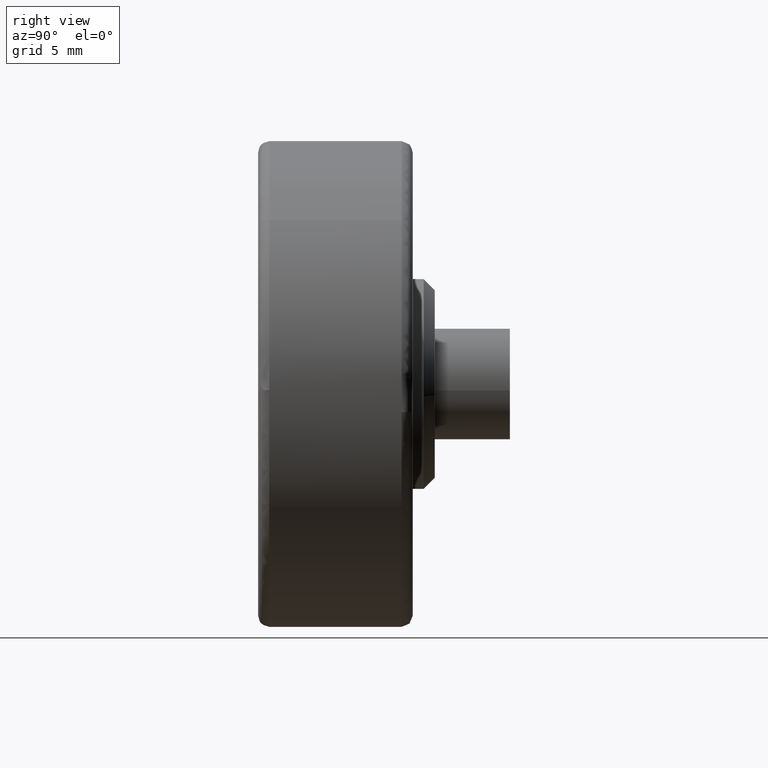
[diagram: clean part render]
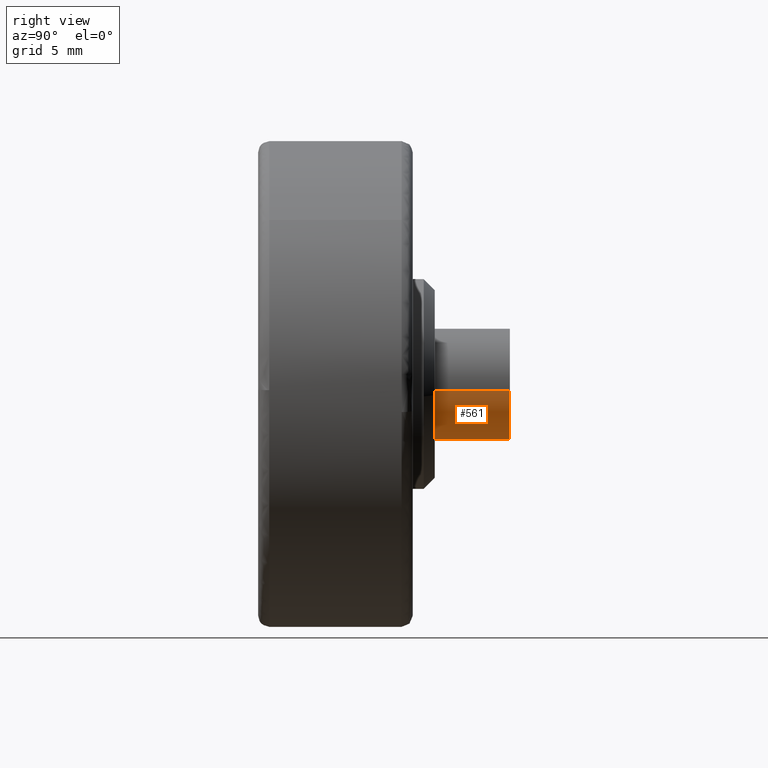
[diagram: same view with one face highlighted and labeled with its STEP entity id]
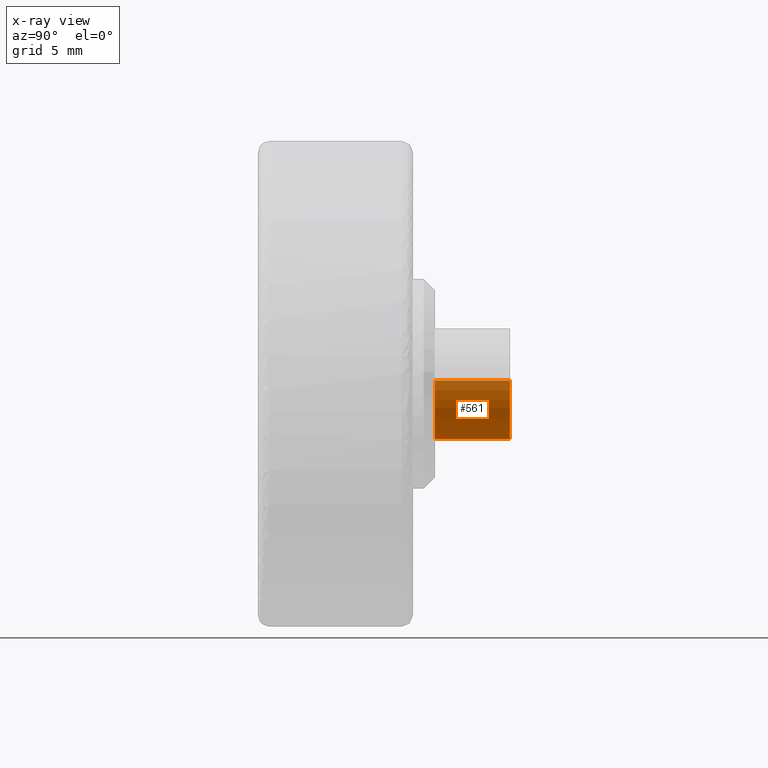
[diagram: x-ray of the same camera — body ghosted, the highlighted face saturated]
A machine part, right view. The second image highlights one B-rep face of the part: STEP entity #561.
The next image is the same camera in x-ray: the body ghosted, the highlighted face saturated — about 17% of this face is hidden behind the body in this view.
In plain terms, the highlighted face is a freeform B-spline surface patch.
Its self-contained STEP definition (entity closure, byte-faithful):
#398=CARTESIAN_POINT('',(2.482523815905430,8.0,-0.295085586673325));
#399=VERTEX_POINT('',#398);
#417=CARTESIAN_POINT('',(2.482523815905430,11.400000000000000,-0.295085586673325));
#418=VERTEX_POINT('',#417);
#419=CARTESIAN_POINT('',(2.482523815905430,11.400000000000000,-0.295085586673325));
#420=CARTESIAN_POINT('',(2.482523815905430,8.0,-0.295085586673325));
#421=QUASI_UNIFORM_CURVE('',1,(#419,#420),.UNSPECIFIED.,.F.,.U.);
#422=EDGE_CURVE('',#418,#399,#421,.T.);
#441=CARTESIAN_POINT('',(-2.495337161746823,11.400000000000000,0.152618639746073));
#442=VERTEX_POINT('',#441);
#456=CARTESIAN_POINT('',(-2.495337163820828,7.999999999999971,0.152618605835177));
#457=VERTEX_POINT('',#456);
#458=CARTESIAN_POINT('',(-2.495337161746823,11.400000000000000,0.152618639746073));
#459=CARTESIAN_POINT('',(-2.495337163820828,7.999999999999971,0.152618605835177));
#460=QUASI_UNIFORM_CURVE('',1,(#458,#459),.UNSPECIFIED.,.F.,.U.);
#461=EDGE_CURVE('',#442,#457,#460,.T.);
#479=CARTESIAN_POINT('',(-2.495336996054667,11.484999999999999,0.152621348837142));
#480=CARTESIAN_POINT('',(-2.647958344891809,11.485000000000005,-2.342715647217524));
#481=CARTESIAN_POINT('',(-0.152621348837143,11.484999999999999,-2.495336996054667));
#482=CARTESIAN_POINT('',(2.203858727098751,11.485000000000005,-2.639465491831319));
#483=CARTESIAN_POINT('',(2.482523815909166,11.484999999999999,-0.295085586641896));
#484=CARTESIAN_POINT('',(-2.495336996054667,7.912875000000000,0.152621348837142));
#485=CARTESIAN_POINT('',(-2.647958344891809,7.912875000000000,-2.342715647217524));
#486=CARTESIAN_POINT('',(-0.152621348837143,7.912875000000000,-2.495336996054667));
#487=CARTESIAN_POINT('',(2.203858727098751,7.912875000000000,-2.639465491831319));
#488=CARTESIAN_POINT('',(2.482523815909166,7.912875000000001,-0.295085586641896));
#496=(BOUNDED_SURFACE()B_SPLINE_SURFACE(2,1,((#479,#484),(#480,#485),(#481,#486),(#482,#487),(#483,#488)),.UNSPECIFIED.,.F.,.F.,.U.)B_SPLINE_SURFACE_WITH_KNOTS((3,2,3),(2,2),(0.0,4.142135623730949,8.118585822512660),(0.0,3.572125000000004),.UNSPECIFIED.)GEOMETRIC_REPRESENTATION_ITEM()RATIONAL_B_SPLINE_SURFACE(((1.0,1.0),(0.707106781186548,0.707106781186548),(1.0,1.0),(0.718822509939086,0.718822509939086),(0.977505800795127,0.977505800795127)))REPRESENTATION_ITEM('')SURFACE());
#497=CARTESIAN_POINT('',(0.0,8.0,-2.500000000000000));
#498=VERTEX_POINT('',#497);
#499=CARTESIAN_POINT('',(0.0,8.0,-2.500000000000000));
#500=CARTESIAN_POINT('',(2.220436314821801,8.0,-2.500000000000000));
#501=CARTESIAN_POINT('',(2.482523815905430,8.0,-0.295085586673325));
#509=(BOUNDED_CURVE()B_SPLINE_CURVE(2,(#499,#500,#501),.UNSPECIFIED.,.F.,.U.)B_SPLINE_CURVE_WITH_KNOTS((3,3),(0.0,0.229562473511365),.UNSPECIFIED.)CURVE()GEOMETRIC_REPRESENTATION_ITEM()RATIONAL_B_SPLINE_CURVE((1.0,0.731050832857914,0.956026754179498))REPRESENTATION_ITEM(''));
#510=EDGE_CURVE('',#498,#399,#509,.T.);
#511=ORIENTED_EDGE('',*,*,#510,.F.);
#512=CARTESIAN_POINT('',(-2.495337163820827,7.999999999999971,0.152618605835177));
#513=CARTESIAN_POINT('',(-2.500000000000000,8.0,0.076380532900050));
#514=CARTESIAN_POINT('',(-2.500000000000000,8.0,-1.962843E-016));
#515=CARTESIAN_POINT('',(-2.500000000000000,8.0,-2.500000000000000));
#516=CARTESIAN_POINT('',(0.0,8.0,-2.500000000000000));
#524=(BOUNDED_CURVE()B_SPLINE_CURVE(2,(#512,#513,#514,#515,#516),.UNSPECIFIED.,.F.,.U.)B_SPLINE_CURVE_WITH_KNOTS((3,2,3),(0.739333151914246,0.750000000000000,1.0),.UNSPECIFIED.)CURVE()GEOMETRIC_REPRESENTATION_ITEM()RATIONAL_B_SPLINE_CURVE((0.976072448177334,0.987503010118277,1.0,0.707106781186548,1.0))REPRESENTATION_ITEM(''));
#525=EDGE_CURVE('',#457,#498,#524,.T.);
#526=ORIENTED_EDGE('',*,*,#525,.F.);
#527=ORIENTED_EDGE('',*,*,#461,.F.);
#528=CARTESIAN_POINT('',(0.0,11.400000000000000,-2.500000000000000));
#529=VERTEX_POINT('',#528);
#530=CARTESIAN_POINT('',(-2.495337161746823,11.400000000000000,0.152618639746073));
#531=CARTESIAN_POINT('',(-2.500000000000000,11.400000000000002,0.076380549903037));
#532=CARTESIAN_POINT('',(-2.500000000000000,11.400000000000000,-1.962843E-016));
#533=CARTESIAN_POINT('',(-2.500000000000000,11.399999999999999,-2.500000000000000));
#534=CARTESIAN_POINT('',(0.0,11.400000000000000,-2.500000000000000));
#542=(BOUNDED_CURVE()B_SPLINE_CURVE(2,(#530,#531,#532,#533,#534),.UNSPECIFIED.,.F.,.U.)B_SPLINE_CURVE_WITH_KNOTS((3,2,3),(0.739333149569385,0.750000000000000,1.0),.UNSPECIFIED.)CURVE()GEOMETRIC_REPRESENTATION_ITEM()RATIONAL_B_SPLINE_CURVE((0.976072443151843,0.987503007371102,1.0,0.707106781186548,1.0))REPRESENTATION_ITEM(''));
#543=EDGE_CURVE('',#442,#529,#542,.T.);
#544=ORIENTED_EDGE('',*,*,#543,.T.);
#545=CARTESIAN_POINT('',(0.0,11.400000000000000,-2.500000000000000));
#546=CARTESIAN_POINT('',(2.220436314821801,11.399999999999999,-2.500000000000000));
#547=CARTESIAN_POINT('',(2.482523815905430,11.400000000000000,-0.295085586673325));
#555=(BOUNDED_CURVE()B_SPLINE_CURVE(2,(#545,#546,#547),.UNSPECIFIED.,.F.,.U.)B_SPLINE_CURVE_WITH_KNOTS((3,3),(0.0,0.229562473511365),.UNSPECIFIED.)CURVE()GEOMETRIC_REPRESENTATION_ITEM()RATIONAL_B_SPLINE_CURVE((1.0,0.731050832857914,0.956026754179498))REPRESENTATION_ITEM(''));
#556=EDGE_CURVE('',#529,#418,#555,.T.);
#557=ORIENTED_EDGE('',*,*,#556,.T.);
#558=ORIENTED_EDGE('',*,*,#422,.T.);
#559=EDGE_LOOP('',(#511,#526,#527,#544,#557,#558));
#560=FACE_OUTER_BOUND('',#559,.T.);
#561=ADVANCED_FACE('',(#560),#496,.T.);